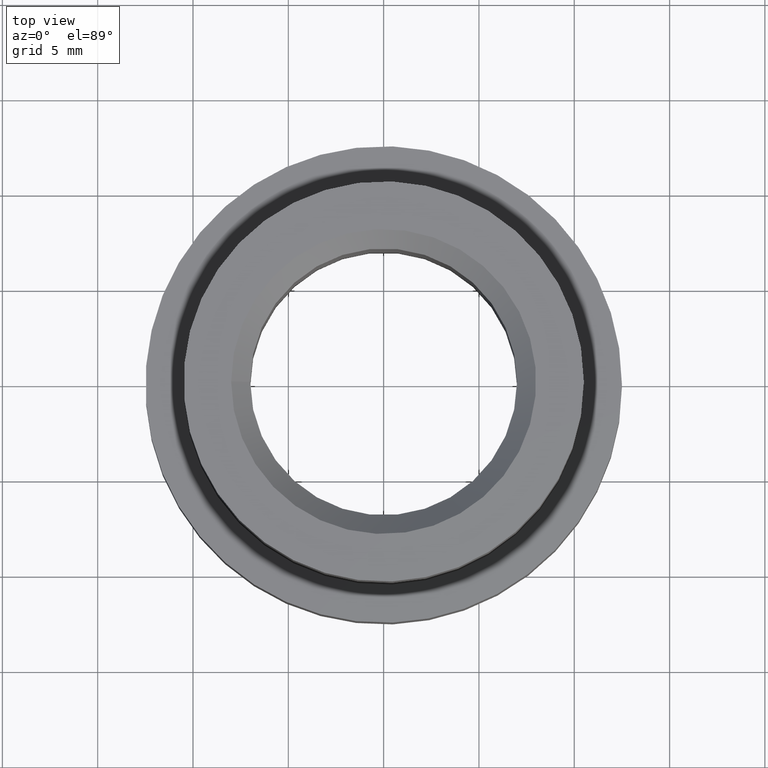
[diagram: clean part render]
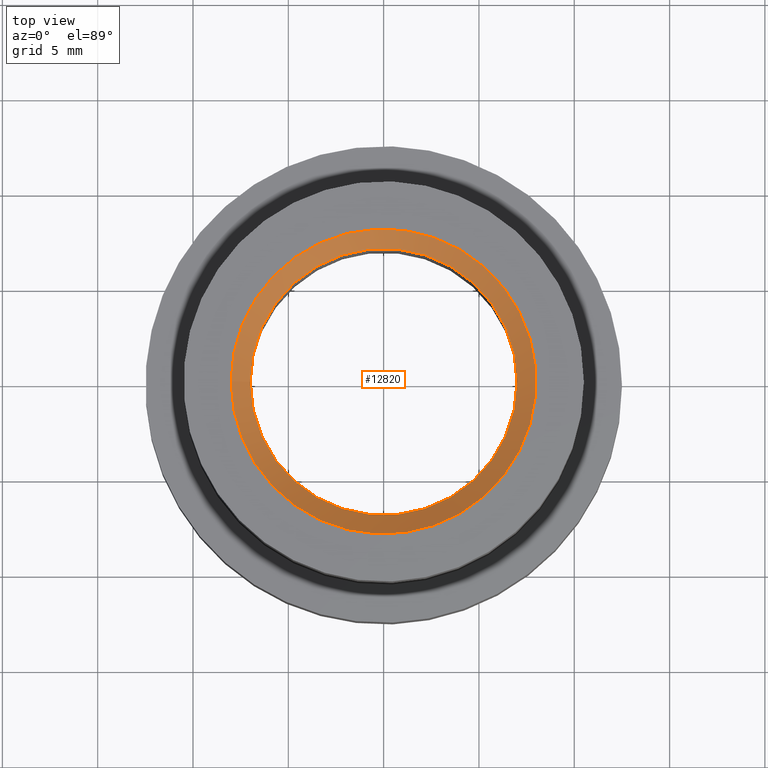
[diagram: same view with one face highlighted and labeled with its STEP entity id]
A machine part, top view. The second image highlights one B-rep face of the part: STEP entity #12820.
In plain terms, the highlighted conical surface has half-angle 45 deg.
Its self-contained STEP definition (entity closure, byte-faithful):
#295 = AXIS2_PLACEMENT_3D ( 'NONE', #7910, #8945, #9970 ) ;
#489 = FACE_BOUND ( 'NONE', #5536, .T. ) ;
#1787 = CIRCLE ( 'NONE', #295, 6.999999999999995559 ) ;
#1913 = FACE_OUTER_BOUND ( 'NONE', #11733, .T. ) ;
#1998 = ORIENTED_EDGE ( 'NONE', *, *, #4781, .F. ) ;
#2301 = ORIENTED_EDGE ( 'NONE', *, *, #6634, .F. ) ;
#2866 = CARTESIAN_POINT ( 'NONE',  ( 0.000000000000000000, 0.000000000000000000, 6.500000000000000000 ) ) ;
#3348 = VERTEX_POINT ( 'NONE', #4192 ) ;
#3615 = AXIS2_PLACEMENT_3D ( 'NONE', #12562, #8574, #4433 ) ;
#4192 = CARTESIAN_POINT ( 'NONE',  ( -7.999999999999996447, 0.000000000000000000, 7.500000000000000000 ) ) ;
#4433 = DIRECTION ( 'NONE',  ( -1.000000000000000000, 0.000000000000000000, 0.000000000000000000 ) ) ;
#4781 = EDGE_CURVE ( 'NONE', #3348, #3348, #6416, .T. ) ;
#5536 = EDGE_LOOP ( 'NONE', ( #2301 ) ) ;
#6013 = DIRECTION ( 'NONE',  ( 0.000000000000000000, 0.000000000000000000, 1.000000000000000000 ) ) ;
#6267 = CARTESIAN_POINT ( 'NONE',  ( -6.999999999999995559, 0.000000000000000000, 6.500000000000000000 ) ) ;
#6416 = CIRCLE ( 'NONE', #3615, 7.999999999999996447 ) ;
#6634 = EDGE_CURVE ( 'NONE', #8604, #8604, #1787, .T. ) ;
#6851 = AXIS2_PLACEMENT_3D ( 'NONE', #2866, #6013, #11100 ) ;
#6855 = CONICAL_SURFACE ( 'NONE', #6851, 6.999999999999995559, 0.7853981633974487231 ) ;
#7910 = CARTESIAN_POINT ( 'NONE',  ( 0.000000000000000000, 0.000000000000000000, 6.500000000000000000 ) ) ;
#8574 = DIRECTION ( 'NONE',  ( 0.000000000000000000, 0.000000000000000000, -1.000000000000000000 ) ) ;
#8604 = VERTEX_POINT ( 'NONE', #6267 ) ;
#8945 = DIRECTION ( 'NONE',  ( 0.000000000000000000, 0.000000000000000000, 1.000000000000000000 ) ) ;
#9970 = DIRECTION ( 'NONE',  ( -1.000000000000000000, 0.000000000000000000, 0.000000000000000000 ) ) ;
#11100 = DIRECTION ( 'NONE',  ( 1.000000000000000000, 0.000000000000000000, 0.000000000000000000 ) ) ;
#11733 = EDGE_LOOP ( 'NONE', ( #1998 ) ) ;
#12562 = CARTESIAN_POINT ( 'NONE',  ( 0.000000000000000000, 0.000000000000000000, 7.500000000000000000 ) ) ;
#12820 = ADVANCED_FACE ( 'NONE', ( #1913, #489 ), #6855, .F. ) ;